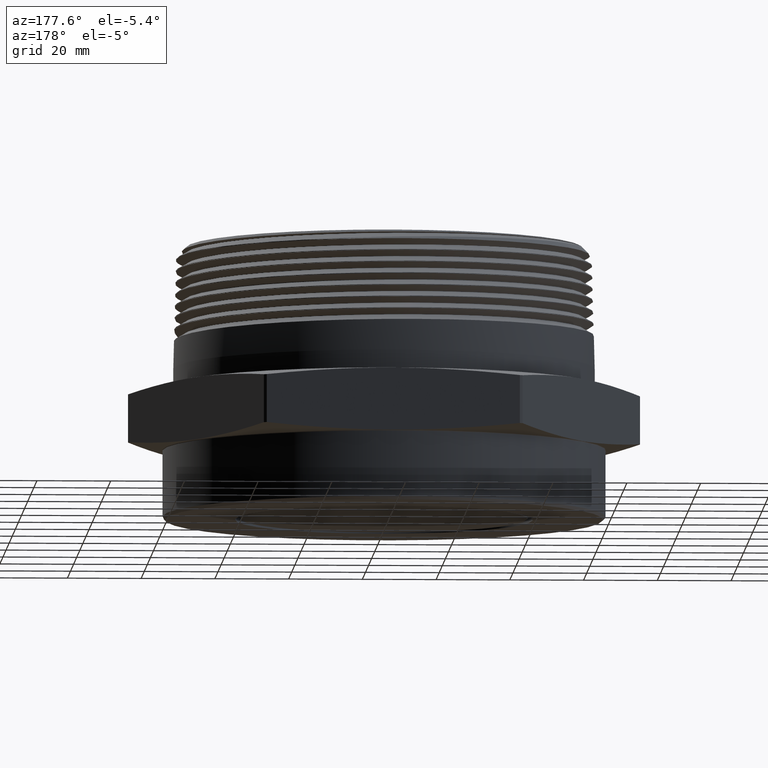
[diagram: clean part render]
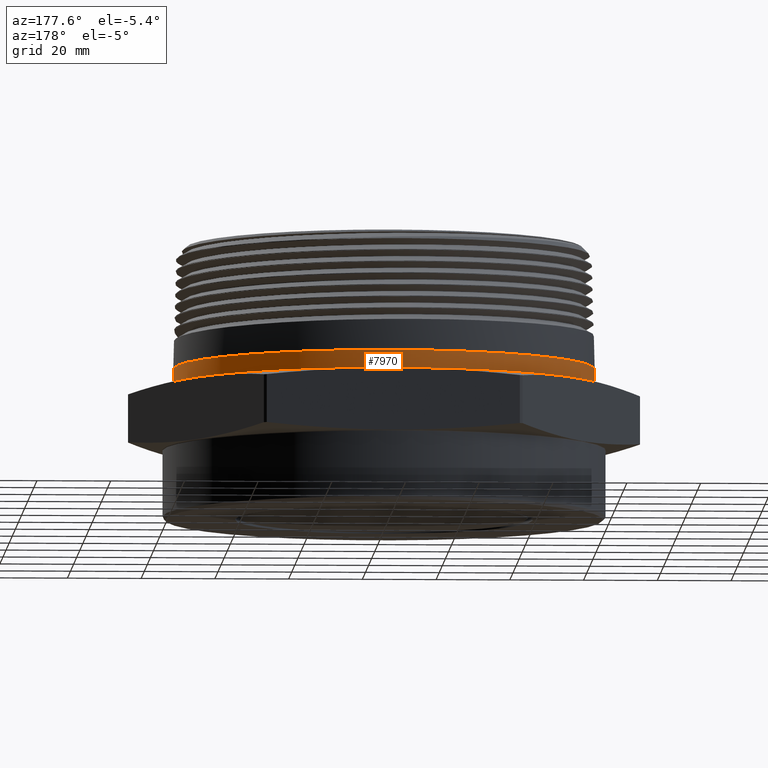
[diagram: same view with one face highlighted and labeled with its STEP entity id]
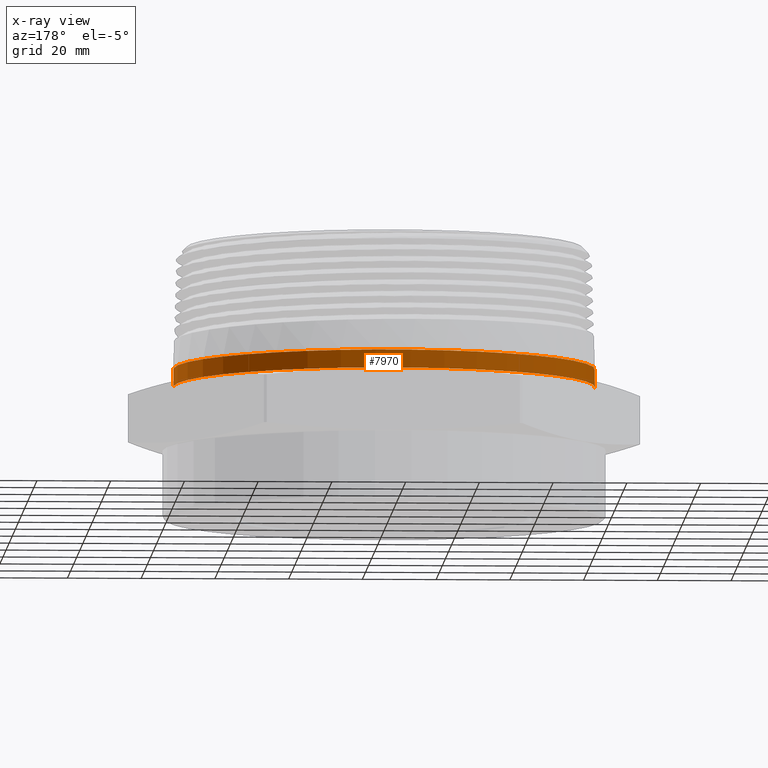
[diagram: x-ray of the same camera — body ghosted, the highlighted face saturated]
A machine part, auxiliary view. The second image highlights one B-rep face of the part: STEP entity #7970.
The next image is the same camera in x-ray: the body ghosted, the highlighted face saturated — about 0% of this face is hidden behind the body in this view.
In plain terms, the highlighted cylindrical surface (partial cylindrical patch) has radius 57.15 mm, axis along (-0, -0, -1).
Its self-contained STEP definition (entity closure, byte-faithful):
#1671 = CARTESIAN_POINT ( 'NONE',  ( 2.250000000000000400, 2.755455298081544300E-016, 0.6800000000000001600 ) ) ;
#1692 = CARTESIAN_POINT ( 'NONE',  ( -2.250000000000000400, 0.0000000000000000000, 0.6800000000000001600 ) ) ;
#1752 = CARTESIAN_POINT ( 'NONE',  ( -2.250000000000000400, 0.0000000000000000000, 0.8719703149742851200 ) ) ;
#1757 = CARTESIAN_POINT ( 'NONE',  ( 2.250000000000000400, 2.755455298081544800E-016, 0.8719703149742851200 ) ) ;
#2063 = VERTEX_POINT ( 'NONE', #1671 ) ;
#2066 = VERTEX_POINT ( 'NONE', #1692 ) ;
#2128 = EDGE_LOOP ( 'NONE', ( #4419, #4411, #4410, #4407 ) ) ;
#2567 = FACE_OUTER_BOUND ( 'NONE', #2128, .T. ) ;
#2570 = CYLINDRICAL_SURFACE ( 'NONE', #2736, 2.250000000000000400 ) ;
#2736 = AXIS2_PLACEMENT_3D ( 'NONE', #5889, #5890, #5888 ) ;
#2800 = AXIS2_PLACEMENT_3D ( 'NONE', #3881, #3882, #3883 ) ;
#2801 = AXIS2_PLACEMENT_3D ( 'NONE', #3886, #3887, #3888 ) ;
#2867 = VERTEX_POINT ( 'NONE', #1752 ) ;
#2872 = VERTEX_POINT ( 'NONE', #1757 ) ;
#3875 = DIRECTION ( 'NONE',  ( -0.0000000000000000000, -0.0000000000000000000, -1.000000000000000000 ) ) ;
#3879 = DIRECTION ( 'NONE',  ( -0.0000000000000000000, -0.0000000000000000000, -1.000000000000000000 ) ) ;
#3880 = CARTESIAN_POINT ( 'NONE',  ( 2.250000000000000400, 2.755455298081544300E-016, 2.169999999999999900 ) ) ;
#3881 = CARTESIAN_POINT ( 'NONE',  ( 0.0000000000000000000, 0.0000000000000000000, 0.8719703149742851200 ) ) ;
#3882 = DIRECTION ( 'NONE',  ( 0.0000000000000000000, 0.0000000000000000000, 1.000000000000000000 ) ) ;
#3883 = DIRECTION ( 'NONE',  ( -1.000000000000000000, 0.0000000000000000000, 0.0000000000000000000 ) ) ;
#3884 = CARTESIAN_POINT ( 'NONE',  ( -2.250000000000000400, 0.0000000000000000000, 2.169999999999999900 ) ) ;
#3886 = CARTESIAN_POINT ( 'NONE',  ( 0.0000000000000000000, 0.0000000000000000000, 0.6800000000000001600 ) ) ;
#3887 = DIRECTION ( 'NONE',  ( -0.0000000000000000000, 0.0000000000000000000, 1.000000000000000000 ) ) ;
#3888 = DIRECTION ( 'NONE',  ( 1.000000000000000000, 0.0000000000000000000, 0.0000000000000000000 ) ) ;
#4407 = ORIENTED_EDGE ( 'NONE', *, *, #8323, .F. ) ;
#4410 = ORIENTED_EDGE ( 'NONE', *, *, #8322, .T. ) ;
#4411 = ORIENTED_EDGE ( 'NONE', *, *, #8321, .T. ) ;
#4419 = ORIENTED_EDGE ( 'NONE', *, *, #8320, .F. ) ;
#5019 = LINE ( 'NONE', #3880, #5027 ) ;
#5023 = CIRCLE ( 'NONE', #2800, 2.250000000000000400 ) ;
#5025 = CIRCLE ( 'NONE', #2801, 2.250000000000000400 ) ;
#5027 = VECTOR ( 'NONE', #3875, 39.37007874015748100 ) ;
#5028 = LINE ( 'NONE', #3884, #5030 ) ;
#5030 = VECTOR ( 'NONE', #3879, 39.37007874015748100 ) ;
#5888 = DIRECTION ( 'NONE',  ( -1.000000000000000000, 0.0000000000000000000, 0.0000000000000000000 ) ) ;
#5889 = CARTESIAN_POINT ( 'NONE',  ( 0.0000000000000000000, 0.0000000000000000000, 2.169999999999999900 ) ) ;
#5890 = DIRECTION ( 'NONE',  ( -0.0000000000000000000, -0.0000000000000000000, -1.000000000000000000 ) ) ;
#7970 = ADVANCED_FACE ( 'NONE', ( #2567 ), #2570, .T. ) ;
#8320 = EDGE_CURVE ( 'NONE', #2872, #2867, #5023, .T. ) ;
#8321 = EDGE_CURVE ( 'NONE', #2872, #2063, #5019, .T. ) ;
#8322 = EDGE_CURVE ( 'NONE', #2063, #2066, #5025, .T. ) ;
#8323 = EDGE_CURVE ( 'NONE', #2867, #2066, #5028, .T. ) ;